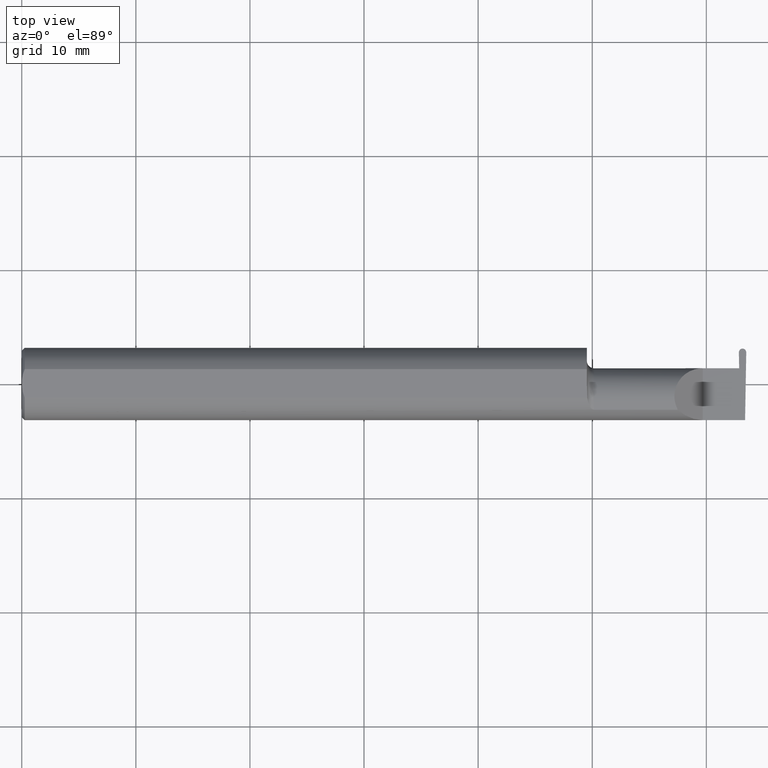
[diagram: clean part render]
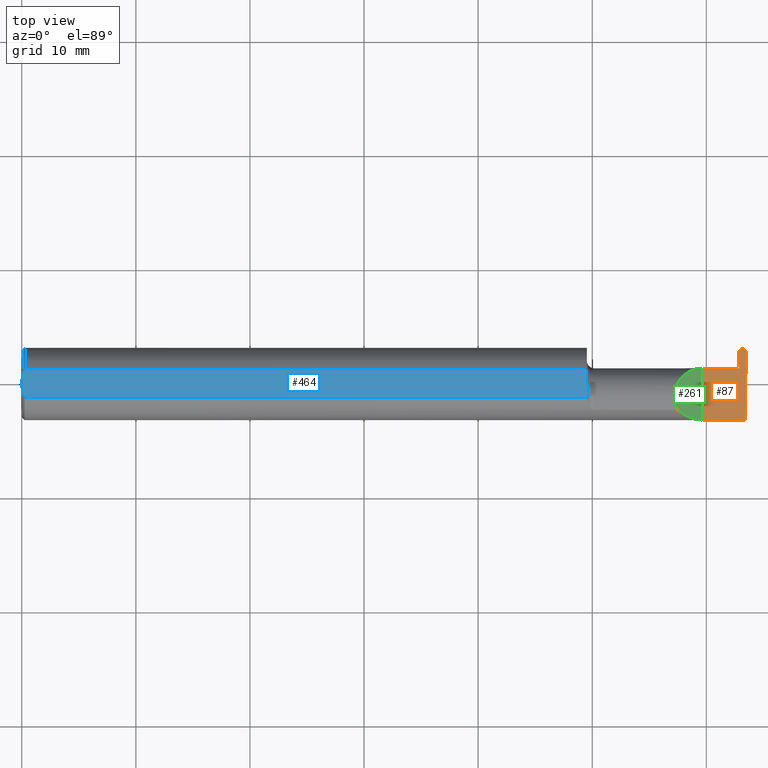
[diagram: same view with three faces highlighted in distinct colors, each labeled with its STEP entity id]
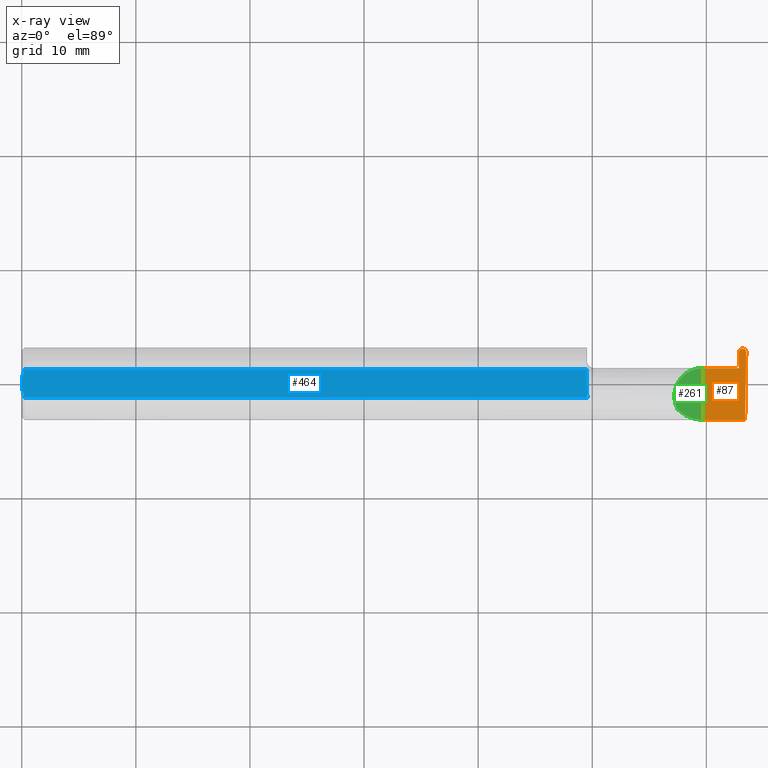
[diagram: x-ray of the same camera — body ghosted, the three highlighted faces saturated]
A machine part, top view with three faces highlighted in distinct colors.
The next image is the same camera in x-ray (body ghosted, the three faces saturated) — at least one of them is partly hidden behind the body in this view.
Their STEP definitions:

[orange] entity #87 — the highlighted planar face has unit normal (-0, 0, -1).
#6 = CARTESIAN_POINT ( 'NONE',  ( 2.350000000000000089, -0.2500000000000000555, 1.836970198721028825E-17 ) ) ;
#15 = EDGE_CURVE ( 'NONE', #106, #419, #388, .T. ) ;
#31 = VECTOR ( 'NONE', #55, 39.37007874015748143 ) ;
#32 = CARTESIAN_POINT ( 'NONE',  ( 2.499988124127622946, 0.1084461686550173415, 0.000000000000000000 ) ) ;
#44 = DIRECTION ( 'NONE',  ( -1.224646799147352468E-16, 0.000000000000000000, -1.000000000000000000 ) ) ;
#54 = CARTESIAN_POINT ( 'NONE',  ( 2.494904346843567211, 0.1219999999999999557, -1.801393336792326575E-17 ) ) ;
#55 = DIRECTION ( 'NONE',  ( -0.000000000000000000, 1.000000000000000000, -0.000000000000000000 ) ) ;
#64 = LINE ( 'NONE', #323, #422 ) ;
#87 = ADVANCED_FACE ( 'NONE', ( #304 ), #527, .F. ) ;
#92 = LINE ( 'NONE', #360, #305 ) ;
#106 = VERTEX_POINT ( 'NONE', #690 ) ;
#111 = DIRECTION ( 'NONE',  ( -0.01745240643727864055, -0.9998476951563912696, 0.000000000000000000 ) ) ;
#113 = EDGE_CURVE ( 'NONE', #586, #419, #380, .T. ) ;
#115 = ORIENTED_EDGE ( 'NONE', *, *, #301, .F. ) ;
#117 = DIRECTION ( 'NONE',  ( -0.01745240643727214574, 0.9998476951563914916, -0.000000000000000000 ) ) ;
#119 = CARTESIAN_POINT ( 'NONE',  ( 2.474487695872377380, 0.1084461686550174248, 0.000000000000000000 ) ) ;
#120 = EDGE_CURVE ( 'NONE', #390, #586, #64, .T. ) ;
#131 = DIRECTION ( 'NONE',  ( 1.000000000000000000, -0.000000000000000000, -0.000000000000000000 ) ) ;
#145 = EDGE_CURVE ( 'NONE', #509, #351, #611, .T. ) ;
#172 = EDGE_CURVE ( 'NONE', #509, #671, #442, .T. ) ;
#174 = ORIENTED_EDGE ( 'NONE', *, *, #510, .F. ) ;
#193 = CARTESIAN_POINT ( 'NONE',  ( 2.475438057281342807, 0.05399999999999999245, 0.000000000000000000 ) ) ;
#203 = CARTESIAN_POINT ( 'NONE',  ( 2.474349256391881191, 0.1163773611807861486, 1.865347047243944014E-17 ) ) ;
#209 = DIRECTION ( 'NONE',  ( -1.000000000000000000, 0.000000000000000000, 1.224646799147352468E-16 ) ) ;
#216 = VERTEX_POINT ( 'NONE', #594 ) ;
#235 = ORIENTED_EDGE ( 'NONE', *, *, #120, .F. ) ;
#278 = ORIENTED_EDGE ( 'NONE', *, *, #15, .T. ) ;
#287 = EDGE_LOOP ( 'NONE', ( #115, #278, #496, #235, #174, #631, #641, #518, #403 ) ) ;
#289 = CARTESIAN_POINT ( 'NONE',  ( 2.487399542938343089, 0.1219999999999999835, 0.000000000000000000 ) ) ;
#298 = CARTESIAN_POINT ( 'NONE',  ( 2.479571473156433115, 0.1219999999999999835, 1.801393336792325959E-17 ) ) ;
#301 = EDGE_CURVE ( 'NONE', #106, #351, #347, .T. ) ;
#304 = FACE_OUTER_BOUND ( 'NONE', #287, .T. ) ;
#305 = VECTOR ( 'NONE', #468, 39.37007874015748143 ) ;
#319 = DIRECTION ( 'NONE',  ( 1.000000000000000000, -0.000000000000000000, -0.000000000000000000 ) ) ;
#323 = CARTESIAN_POINT ( 'NONE',  ( 2.475438057281342807, 0.05399999999999999245, 0.000000000000000000 ) ) ;
#337 = VERTEX_POINT ( 'NONE', #344 ) ;
#344 = CARTESIAN_POINT ( 'NONE',  ( 2.350000000000000089, -0.1250000000000000278, 1.836970198721028825E-17 ) ) ;
#347 = LINE ( 'NONE', #676, #513 ) ;
#351 = VERTEX_POINT ( 'NONE', #289 ) ;
#360 = CARTESIAN_POINT ( 'NONE',  ( 3.749399456654637998E-32, -0.1249999999999999861, 3.061616997868380183E-16 ) ) ;
#370 = LINE ( 'NONE', #6, #31 ) ;
#375 = CARTESIAN_POINT ( 'NONE',  ( 2.500126563608119135, 0.1163773611807860930, -1.865347047243944322E-17 ) ) ;
#380 = LINE ( 'NONE', #662, #640 ) ;
#388 =( BOUNDED_CURVE ( )  B_SPLINE_CURVE ( 3, ( #413, #298, #203, #481 ),
 .UNSPECIFIED., .F., .T. ) 
 B_SPLINE_CURVE_WITH_KNOTS ( ( 4, 4 ),
 ( 6.171327673818499449, 7.747253380535275014 ),
 .UNSPECIFIED. ) 
 CURVE ( )  GEOMETRIC_REPRESENTATION_ITEM ( )  RATIONAL_B_SPLINE_CURVE ( ( 1.000000000000000000, 0.8035272986452582922, 0.8035272986452582922, 1.000000000000000000 ) ) 
 REPRESENTATION_ITEM ( '' )  );
#390 = VERTEX_POINT ( 'NONE', #574 ) ;
#403 = ORIENTED_EDGE ( 'NONE', *, *, #145, .T. ) ;
#413 = CARTESIAN_POINT ( 'NONE',  ( 2.487076277061657237, 0.1219999999999999835, 0.000000000000000000 ) ) ;
#419 = VERTEX_POINT ( 'NONE', #119 ) ;
#422 = VECTOR ( 'NONE', #319, 39.37007874015748143 ) ;
#442 = LINE ( 'NONE', #648, #482 ) ;
#466 = EDGE_CURVE ( 'NONE', #671, #337, #92, .T. ) ;
#468 = DIRECTION ( 'NONE',  ( -1.000000000000000000, -0.000000000000000000, -0.000000000000000000 ) ) ;
#481 = CARTESIAN_POINT ( 'NONE',  ( 2.474487695872377380, 0.1084461686550174248, 0.000000000000000000 ) ) ;
#482 = VECTOR ( 'NONE', #111, 39.37007874015748854 ) ;
#496 = ORIENTED_EDGE ( 'NONE', *, *, #113, .F. ) ;
#509 = VERTEX_POINT ( 'NONE', #32 ) ;
#510 = EDGE_CURVE ( 'NONE', #216, #390, #516, .T. ) ;
#513 = VECTOR ( 'NONE', #131, 39.37007874015748143 ) ;
#516 = LINE ( 'NONE', #566, #673 ) ;
#518 = ORIENTED_EDGE ( 'NONE', *, *, #172, .F. ) ;
#527 = PLANE ( 'NONE',  #617 ) ;
#539 = CARTESIAN_POINT ( 'NONE',  ( 2.495913306096507522, -0.1250000000000000000, 0.000000000000000000 ) ) ;
#566 = CARTESIAN_POINT ( 'NONE',  ( 1.949999999999999956, 0.05399999999999997163, 6.735557395310437586E-17 ) ) ;
#574 = CARTESIAN_POINT ( 'NONE',  ( 2.469251112866224673, 0.05399999999999999245, 0.000000000000000000 ) ) ;
#584 = CARTESIAN_POINT ( 'NONE',  ( 2.500000000000000000, -0.2500000000000000555, 0.000000000000000000 ) ) ;
#586 = VERTEX_POINT ( 'NONE', #193 ) ;
#594 = CARTESIAN_POINT ( 'NONE',  ( 2.350000000000000089, 0.05399999999999999245, 6.735557395310437586E-17 ) ) ;
#602 = CARTESIAN_POINT ( 'NONE',  ( 2.487399542938343089, 0.1219999999999999835, 0.000000000000000000 ) ) ;
#611 =( BOUNDED_CURVE ( )  B_SPLINE_CURVE ( 3, ( #659, #375, #54, #602 ),
 .UNSPECIFIED., .F., .F. ) 
 B_SPLINE_CURVE_WITH_KNOTS ( ( 4, 4 ),
 ( 1.677524580234104556, 3.253450286950886117 ),
 .UNSPECIFIED. ) 
 CURVE ( )  GEOMETRIC_REPRESENTATION_ITEM ( )  RATIONAL_B_SPLINE_CURVE ( ( 1.000000000000000000, 0.8035272986452568489, 0.8035272986452568489, 1.000000000000000000 ) ) 
 REPRESENTATION_ITEM ( '' )  );
#617 = AXIS2_PLACEMENT_3D ( 'NONE', #584, #44, #209 ) ;
#630 = DIRECTION ( 'NONE',  ( 1.000000000000000000, 3.255450358112149836E-17, 0.000000000000000000 ) ) ;
#631 = ORIENTED_EDGE ( 'NONE', *, *, #696, .F. ) ;
#640 = VECTOR ( 'NONE', #117, 39.37007874015748854 ) ;
#641 = ORIENTED_EDGE ( 'NONE', *, *, #466, .F. ) ;
#648 = CARTESIAN_POINT ( 'NONE',  ( 2.499998056271878877, 0.1090151808183310173, 0.000000000000000000 ) ) ;
#659 = CARTESIAN_POINT ( 'NONE',  ( 2.499988124127622946, 0.1084461686550173415, 0.000000000000000000 ) ) ;
#662 = CARTESIAN_POINT ( 'NONE',  ( 2.474477763728121893, 0.1090151808183310173, 0.000000000000000000 ) ) ;
#671 = VERTEX_POINT ( 'NONE', #539 ) ;
#673 = VECTOR ( 'NONE', #630, 39.37007874015748143 ) ;
#676 = CARTESIAN_POINT ( 'NONE',  ( -3.937007874019685528E-05, 0.1219999999999999835, 0.000000000000000000 ) ) ;
#690 = CARTESIAN_POINT ( 'NONE',  ( 2.487076277061657237, 0.1219999999999999835, 0.000000000000000000 ) ) ;
#696 = EDGE_CURVE ( 'NONE', #337, #216, #370, .T. ) ;

[blue] entity #464 — the highlighted planar face has unit normal (0, 0, 1).
#9 = CARTESIAN_POINT ( 'NONE',  ( 1.950000000000000178, -0.008475349815722598920, 0.1149999999999999217 ) ) ;
#35 = CARTESIAN_POINT ( 'NONE',  ( 1.951395249340564853, -0.04087966525279052715, 0.1149999999999999495 ) ) ;
#49 = LINE ( 'NONE', #317, #560 ) ;
#56 = ORIENTED_EDGE ( 'NONE', *, *, #667, .T. ) ;
#81 = ORIENTED_EDGE ( 'NONE', *, *, #644, .T. ) ;
#91 = EDGE_CURVE ( 'NONE', #581, #383, #432, .T. ) ;
#101 = EDGE_LOOP ( 'NONE', ( #668, #81, #56, #657, #615, #439 ) ) ;
#104 = CARTESIAN_POINT ( 'NONE',  ( 0.000000000000000000, 3.414809992080329023E-17, 0.1149999999999999217 ) ) ;
#109 = CARTESIAN_POINT ( 'NONE',  ( 1.951278290187155484, -0.04898979485567042658, 0.1149999999999999217 ) ) ;
#129 = VERTEX_POINT ( 'NONE', #170 ) ;
#156 = PLANE ( 'NONE',  #434 ) ;
#158 = CARTESIAN_POINT ( 'NONE',  ( 1.950474906351724824, -0.01657217611524270523, 0.1149999999999999217 ) ) ;
#170 = CARTESIAN_POINT ( 'NONE',  ( 1.949999999999999956, -0.0003651515414570241560, 0.1149999999999999217 ) ) ;
#191 = CARTESIAN_POINT ( 'NONE',  ( 1.541666659510484467E-16, -0.008419750986449443114, 0.1149999999999999356 ) ) ;
#194 = EDGE_CURVE ( 'NONE', #697, #383, #656, .T. ) ;
#208 = FACE_OUTER_BOUND ( 'NONE', #101, .T. ) ;
#222 = DIRECTION ( 'NONE',  ( -1.000000000000000000, -0.000000000000000000, -0.000000000000000000 ) ) ;
#243 = CARTESIAN_POINT ( 'NONE',  ( 0.004414142251465132810, -0.03315347577847933824, 0.1149999999999999356 ) ) ;
#245 = CARTESIAN_POINT ( 'NONE',  ( 1.951184456069809281, -0.03277259381767837210, 0.1149999999999999356 ) ) ;
#251 = CARTESIAN_POINT ( 'NONE',  ( 0.01000000000000042348, 0.04898979485566374442, 0.1149999999999999217 ) ) ;
#260 = DIRECTION ( 'NONE',  ( -3.255450358112149836E-17, 1.000000000000000000, 0.000000000000000000 ) ) ;
#267 = LINE ( 'NONE', #412, #626 ) ;
#310 = CARTESIAN_POINT ( 'NONE',  ( 0.003880275146595849479, 0.03337499979622342988, 0.1149999999999999217 ) ) ;
#313 = EDGE_CURVE ( 'NONE', #421, #581, #320, .T. ) ;
#315 = CARTESIAN_POINT ( 'NONE',  ( 0.000000000000000000, 0.04898979485566374442, 0.1149999999999999217 ) ) ;
#317 = CARTESIAN_POINT ( 'NONE',  ( 1.949999999999999956, 0.1249999999999999861, 0.1149999999999999217 ) ) ;
#320 = B_SPLINE_CURVE_WITH_KNOTS ( 'NONE', 3,
 ( #335, #619, #243, #394, #191, #402 ),
 .UNSPECIFIED., .F., .F.,
 ( 4, 2, 4 ),
 ( 0.001061950514642623312, 0.001696734447512964709, 0.002331518380383306322 ),
 .UNSPECIFIED. ) ;
#335 = CARTESIAN_POINT ( 'NONE',  ( 0.01000000000000042348, -0.04898979485566374442, 0.1149999999999999217 ) ) ;
#353 = CARTESIAN_POINT ( 'NONE',  ( 0.01000000000000042348, -0.04898979485566374442, 0.1149999999999999217 ) ) ;
#362 = CARTESIAN_POINT ( 'NONE',  ( 2.753179778023443269, 0.1250000000000000278, 0.1149999999999999217 ) ) ;
#373 = CARTESIAN_POINT ( 'NONE',  ( 1.949999999999999956, 0.04898979485566374442, 0.1149999999999999217 ) ) ;
#383 = VERTEX_POINT ( 'NONE', #251 ) ;
#389 = EDGE_CURVE ( 'NONE', #421, #647, #267, .T. ) ;
#394 = CARTESIAN_POINT ( 'NONE',  ( 0.0009328476361608245343, -0.01672844127736827086, 0.1149999999999999217 ) ) ;
#402 = CARTESIAN_POINT ( 'NONE',  ( 0.000000000000000000, 3.414809992080329023E-17, 0.1149999999999999217 ) ) ;
#412 = CARTESIAN_POINT ( 'NONE',  ( 0.000000000000000000, -0.04898979485566374442, 0.1149999999999999217 ) ) ;
#421 = VERTEX_POINT ( 'NONE', #353 ) ;
#432 = B_SPLINE_CURVE_WITH_KNOTS ( 'NONE', 3,
 ( #104, #475, #310, #694 ),
 .UNSPECIFIED., .F., .F.,
 ( 4, 4 ),
 ( 0.002331518380383306322, 0.003601362264757408584 ),
 .UNSPECIFIED. ) ;
#434 = AXIS2_PLACEMENT_3D ( 'NONE', #362, #582, #693 ) ;
#439 = ORIENTED_EDGE ( 'NONE', *, *, #313, .F. ) ;
#448 = B_SPLINE_CURVE_WITH_KNOTS ( 'NONE', 3,
 ( #569, #35, #245, #158, #9, #695 ),
 .UNSPECIFIED., .F., .F.,
 ( 4, 2, 4 ),
 ( 0.009319464280391169878, 0.009934044568937497321, 0.01054862485748382477 ),
 .UNSPECIFIED. ) ;
#464 = ADVANCED_FACE ( 'NONE', ( #208 ), #156, .T. ) ;
#474 = DIRECTION ( 'NONE',  ( 1.000000000000000000, 0.000000000000000000, 0.000000000000000000 ) ) ;
#475 = CARTESIAN_POINT ( 'NONE',  ( 1.642610067308552155E-16, 0.01684316307400865464, 0.1149999999999999217 ) ) ;
#560 = VECTOR ( 'NONE', #260, 39.37007874015748143 ) ;
#569 = CARTESIAN_POINT ( 'NONE',  ( 1.951278290187155484, -0.04898979485567042658, 0.1149999999999999217 ) ) ;
#576 = CARTESIAN_POINT ( 'NONE',  ( 0.000000000000000000, 3.414809992080329023E-17, 0.1149999999999999217 ) ) ;
#581 = VERTEX_POINT ( 'NONE', #576 ) ;
#582 = DIRECTION ( 'NONE',  ( 0.000000000000000000, 0.000000000000000000, 1.000000000000000000 ) ) ;
#583 = VECTOR ( 'NONE', #222, 39.37007874015748143 ) ;
#615 = ORIENTED_EDGE ( 'NONE', *, *, #91, .F. ) ;
#619 = CARTESIAN_POINT ( 'NONE',  ( 0.006956794985978487743, -0.04122489957750442163, 0.1149999999999999356 ) ) ;
#626 = VECTOR ( 'NONE', #474, 39.37007874015748143 ) ;
#644 = EDGE_CURVE ( 'NONE', #647, #129, #448, .T. ) ;
#647 = VERTEX_POINT ( 'NONE', #109 ) ;
#656 = LINE ( 'NONE', #315, #583 ) ;
#657 = ORIENTED_EDGE ( 'NONE', *, *, #194, .T. ) ;
#667 = EDGE_CURVE ( 'NONE', #129, #697, #49, .T. ) ;
#668 = ORIENTED_EDGE ( 'NONE', *, *, #389, .T. ) ;
#693 = DIRECTION ( 'NONE',  ( 1.000000000000000000, 0.000000000000000000, -0.000000000000000000 ) ) ;
#694 = CARTESIAN_POINT ( 'NONE',  ( 0.01000000000000042348, 0.04898979485566374442, 0.1149999999999999217 ) ) ;
#695 = CARTESIAN_POINT ( 'NONE',  ( 1.949999999999999956, -0.0003651515414570241560, 0.1149999999999999217 ) ) ;
#697 = VERTEX_POINT ( 'NONE', #373 ) ;

[green] entity #261 — the highlighted planar face has unit normal (-0.7071, 0, -0.7071).
#6 = CARTESIAN_POINT ( 'NONE',  ( 2.350000000000000089, -0.2500000000000000555, 1.836970198721028825E-17 ) ) ;
#31 = VECTOR ( 'NONE', #55, 39.37007874015748143 ) ;
#48 = EDGE_CURVE ( 'NONE', #337, #677, #59, .T. ) ;
#55 = DIRECTION ( 'NONE',  ( -0.000000000000000000, 1.000000000000000000, -0.000000000000000000 ) ) ;
#59 =( BOUNDED_CURVE ( )  B_SPLINE_CURVE ( 3, ( #682, #295, #479, #312 ),
 .UNSPECIFIED., .F., .T. ) 
 B_SPLINE_CURVE_WITH_KNOTS ( ( 4, 4 ),
 ( 4.712388980384689674, 5.474523801125206646 ),
 .UNSPECIFIED. ) 
 CURVE ( )  GEOMETRIC_REPRESENTATION_ITEM ( )  RATIONAL_B_SPLINE_CURVE ( ( 1.000000000000000000, 0.9521787881681383903, 0.9521787881681383903, 1.000000000000000000 ) ) 
 REPRESENTATION_ITEM ( '' )  );
#73 = CARTESIAN_POINT ( 'NONE',  ( 2.350000000000000089, -0.2500000000000000555, 1.836970198721028825E-17 ) ) ;
#94 = CARTESIAN_POINT ( 'NONE',  ( 2.224355642859858762, -0.01728409361947872563, 0.1256443571401404669 ) ) ;
#216 = VERTEX_POINT ( 'NONE', #594 ) ;
#230 = PLANE ( 'NONE',  #525 ) ;
#253 = CARTESIAN_POINT ( 'NONE',  ( 2.263691591372603895, -0.09042045454545441507, 0.08630840862739512509 ) ) ;
#261 = ADVANCED_FACE ( 'NONE', ( #550 ), #230, .F. ) ;
#294 = CARTESIAN_POINT ( 'NONE',  ( 2.350000000000000089, 0.05399999999999999245, 6.735557395310437586E-17 ) ) ;
#295 = CARTESIAN_POINT ( 'NONE',  ( 2.317450832343515899, -0.1250000000000000000, 0.03254916765648416949 ) ) ;
#312 = CARTESIAN_POINT ( 'NONE',  ( 2.263691591372603895, -0.09042045454545441507, 0.08630840862739512509 ) ) ;
#332 = ORIENTED_EDGE ( 'NONE', *, *, #568, .F. ) ;
#337 = VERTEX_POINT ( 'NONE', #344 ) ;
#344 = CARTESIAN_POINT ( 'NONE',  ( 2.350000000000000089, -0.1250000000000000278, 1.836970198721028825E-17 ) ) ;
#370 = LINE ( 'NONE', #6, #31 ) ;
#381 = CARTESIAN_POINT ( 'NONE',  ( 2.263691591372603895, -0.09042045454545441507, 0.08630840862739512509 ) ) ;
#427 = EDGE_LOOP ( 'NONE', ( #332, #443, #456 ) ) ;
#437 =( BOUNDED_CURVE ( )  B_SPLINE_CURVE ( 3, ( #253, #94, #473, #294 ),
 .UNSPECIFIED., .F., .T. ) 
 B_SPLINE_CURVE_WITH_KNOTS ( ( 4, 4 ),
 ( 5.789722842198295361, 7.853981633974482790 ),
 .UNSPECIFIED. ) 
 CURVE ( )  GEOMETRIC_REPRESENTATION_ITEM ( )  RATIONAL_B_SPLINE_CURVE ( ( 1.000000000000000000, 0.6753281001527242644, 0.6753281001527242644, 1.000000000000000000 ) ) 
 REPRESENTATION_ITEM ( '' )  );
#443 = ORIENTED_EDGE ( 'NONE', *, *, #48, .F. ) ;
#456 = ORIENTED_EDGE ( 'NONE', *, *, #696, .T. ) ;
#460 = DIRECTION ( 'NONE',  ( -0.7071067811865511255, 0.000000000000000000, 0.7071067811865439090 ) ) ;
#473 = CARTESIAN_POINT ( 'NONE',  ( 2.266956372099407258, 0.05399999999999999245, 0.08304362790059179045 ) ) ;
#479 = CARTESIAN_POINT ( 'NONE',  ( 2.287236475649208067, -0.1128945894460738203, 0.06276352435079109171 ) ) ;
#525 = AXIS2_PLACEMENT_3D ( 'NONE', #73, #666, #460 ) ;
#550 = FACE_OUTER_BOUND ( 'NONE', #427, .T. ) ;
#568 = EDGE_CURVE ( 'NONE', #677, #216, #437, .T. ) ;
#594 = CARTESIAN_POINT ( 'NONE',  ( 2.350000000000000089, 0.05399999999999999245, 6.735557395310437586E-17 ) ) ;
#666 = DIRECTION ( 'NONE',  ( -0.7071067811865439090, 0.000000000000000000, -0.7071067811865511255 ) ) ;
#677 = VERTEX_POINT ( 'NONE', #381 ) ;
#682 = CARTESIAN_POINT ( 'NONE',  ( 2.350000000000000089, -0.1250000000000000278, 1.836970198721028825E-17 ) ) ;
#696 = EDGE_CURVE ( 'NONE', #337, #216, #370, .T. ) ;